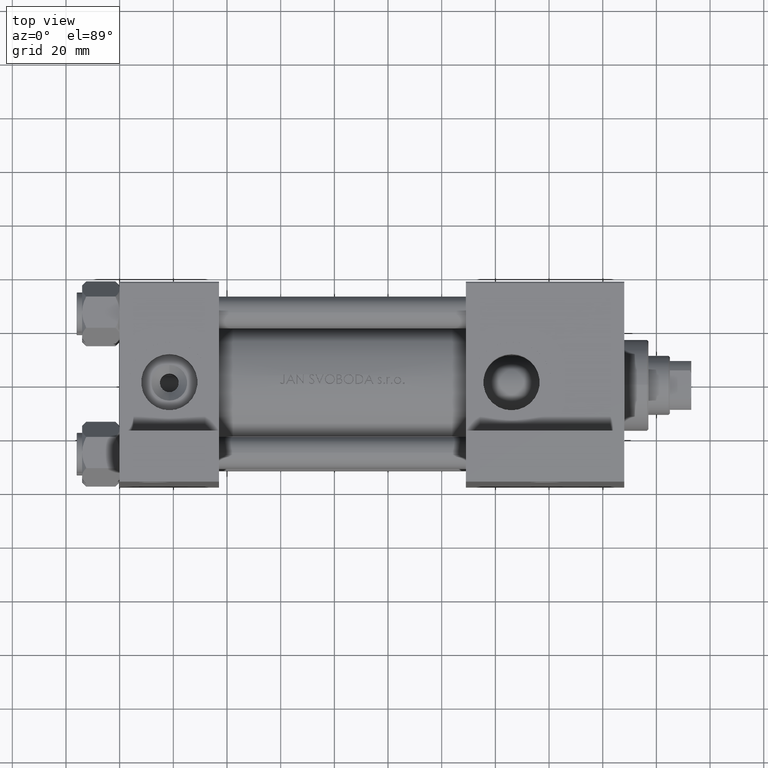
[diagram: clean part render]
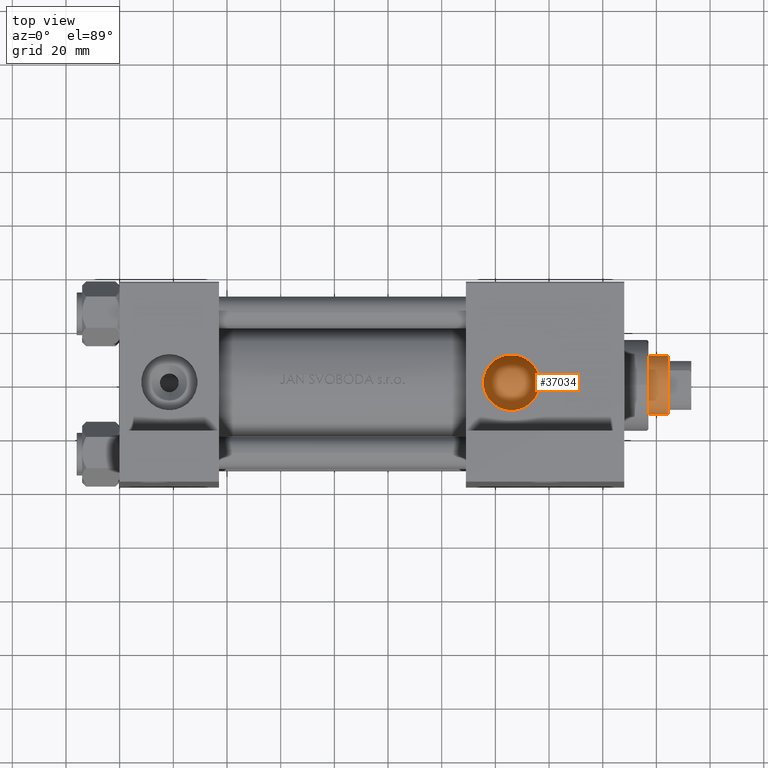
[diagram: same view with one face highlighted and labeled with its STEP entity id]
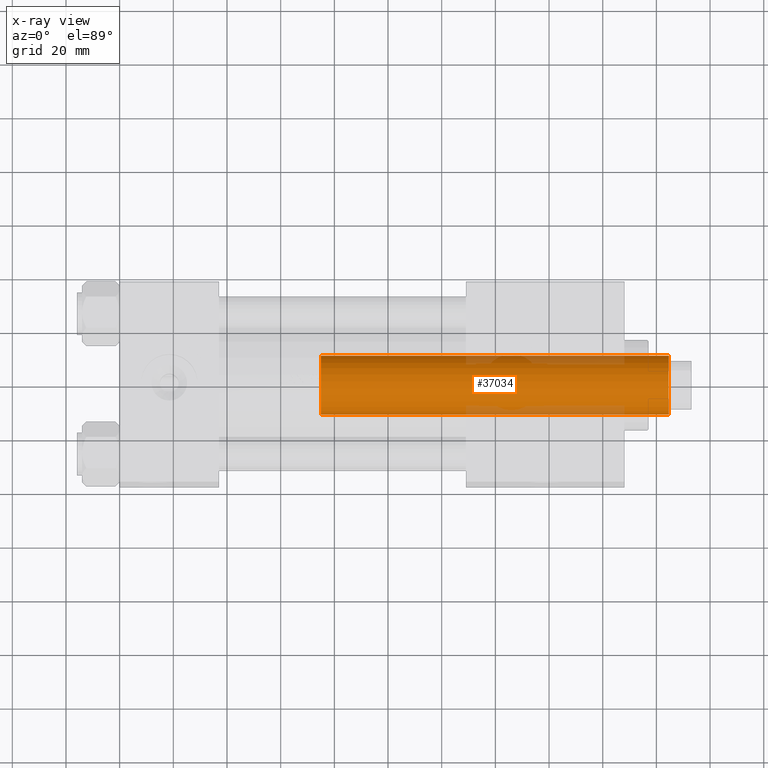
[diagram: x-ray of the same camera — body ghosted, the highlighted face saturated]
A machine part, top view. The second image highlights one B-rep face of the part: STEP entity #37034.
The next image is the same camera in x-ray: the body ghosted, the highlighted face saturated — about 12% of this face is hidden behind the body in this view.
In plain terms, the highlighted cylindrical surface (edge-blend (fillet) strip) has radius 11 mm, axis along (-1, 0, 0).
Its self-contained STEP definition (entity closure, byte-faithful):
#776 = LINE ( 'NONE', #15993, #14299 ) ;
#1022 = DIRECTION ( 'NONE',  ( -0.000000000000000000, -0.000000000000000000, -1.000000000000000000 ) ) ;
#2287 = DIRECTION ( 'NONE',  ( 0.000000000000000000, 0.000000000000000000, -1.000000000000000000 ) ) ;
#2959 = LINE ( 'NONE', #29840, #31818 ) ;
#2991 = CARTESIAN_POINT ( 'NONE',  ( 0.000000000000000000, 0.000000000000000000, 38.00000000000000000 ) ) ;
#3202 = AXIS2_PLACEMENT_3D ( 'NONE', #2991, #9994, #14706 ) ;
#3778 = VERTEX_POINT ( 'NONE', #37954 ) ;
#7946 = VERTEX_POINT ( 'NONE', #22759 ) ;
#7983 = AXIS2_PLACEMENT_3D ( 'NONE', #36418, #2287, #47865 ) ;
#9994 = DIRECTION ( 'NONE',  ( 0.000000000000000000, 0.000000000000000000, 1.000000000000000000 ) ) ;
#14299 = VECTOR ( 'NONE', #1022, 1000.000000000000000 ) ;
#14348 = CIRCLE ( 'NONE', #7983, 11.00000000000000000 ) ;
#14706 = DIRECTION ( 'NONE',  ( 1.000000000000000000, 0.000000000000000000, 0.000000000000000000 ) ) ;
#15283 = EDGE_CURVE ( 'NONE', #3778, #35195, #2959, .T. ) ;
#15993 = CARTESIAN_POINT ( 'NONE',  ( 11.00000000000000000, 1.347111479062088405E-15, 168.0000000000000000 ) ) ;
#16074 = ORIENTED_EDGE ( 'NONE', *, *, #34711, .T. ) ;
#19703 = FACE_OUTER_BOUND ( 'NONE', #25851, .T. ) ;
#20569 = ORIENTED_EDGE ( 'NONE', *, *, #33598, .F. ) ;
#20727 = ORIENTED_EDGE ( 'NONE', *, *, #30491, .T. ) ;
#21638 = DIRECTION ( 'NONE',  ( -0.000000000000000000, -0.000000000000000000, -1.000000000000000000 ) ) ;
#22759 = CARTESIAN_POINT ( 'NONE',  ( 11.00000000000000000, 1.347111479062088405E-15, 38.00000000000000000 ) ) ;
#23096 = CARTESIAN_POINT ( 'NONE',  ( 11.00000000000000000, 1.347111479062088405E-15, 167.5000000000000000 ) ) ;
#24407 = DIRECTION ( 'NONE',  ( -1.000000000000000000, 0.000000000000000000, 0.000000000000000000 ) ) ;
#25530 = VERTEX_POINT ( 'NONE', #23096 ) ;
#25851 = EDGE_LOOP ( 'NONE', ( #20569, #20727, #42382, #16074 ) ) ;
#26344 = AXIS2_PLACEMENT_3D ( 'NONE', #47096, #27402, #24407 ) ;
#27402 = DIRECTION ( 'NONE',  ( -0.000000000000000000, -0.000000000000000000, -1.000000000000000000 ) ) ;
#29840 = CARTESIAN_POINT ( 'NONE',  ( -11.00000000000000000, 0.000000000000000000, 168.0000000000000000 ) ) ;
#30491 = EDGE_CURVE ( 'NONE', #25530, #3778, #14348, .T. ) ;
#31818 = VECTOR ( 'NONE', #21638, 1000.000000000000000 ) ;
#33598 = EDGE_CURVE ( 'NONE', #25530, #7946, #776, .T. ) ;
#34711 = EDGE_CURVE ( 'NONE', #35195, #7946, #35026, .T. ) ;
#34900 = CYLINDRICAL_SURFACE ( 'NONE', #26344, 11.00000000000000000 ) ;
#35026 = CIRCLE ( 'NONE', #3202, 11.00000000000000000 ) ;
#35195 = VERTEX_POINT ( 'NONE', #40500 ) ;
#36418 = CARTESIAN_POINT ( 'NONE',  ( 0.000000000000000000, 0.000000000000000000, 167.5000000000000000 ) ) ;
#37034 = ADVANCED_FACE ( 'NONE', ( #19703 ), #34900, .T. ) ;
#37954 = CARTESIAN_POINT ( 'NONE',  ( -11.00000000000000000, 0.000000000000000000, 167.5000000000000000 ) ) ;
#40500 = CARTESIAN_POINT ( 'NONE',  ( -11.00000000000000000, 0.000000000000000000, 38.00000000000000000 ) ) ;
#42382 = ORIENTED_EDGE ( 'NONE', *, *, #15283, .T. ) ;
#47096 = CARTESIAN_POINT ( 'NONE',  ( 0.000000000000000000, 0.000000000000000000, 168.0000000000000000 ) ) ;
#47865 = DIRECTION ( 'NONE',  ( 1.000000000000000000, 0.000000000000000000, 0.000000000000000000 ) ) ;